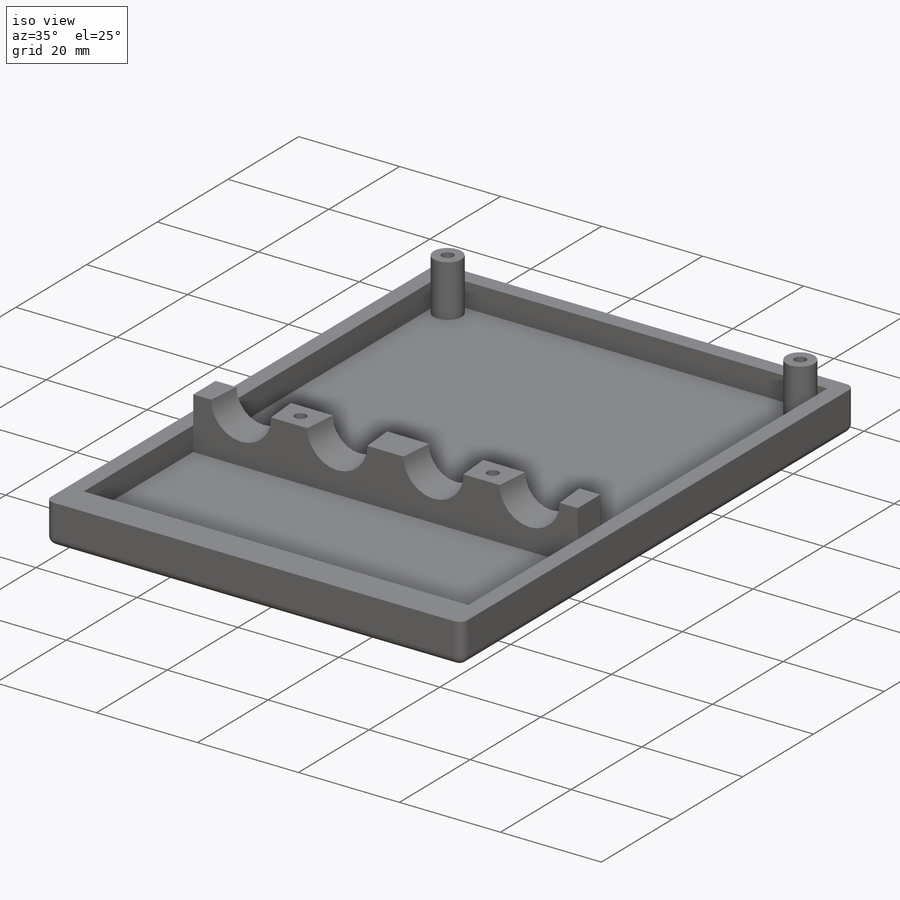
[diagram: iso view]
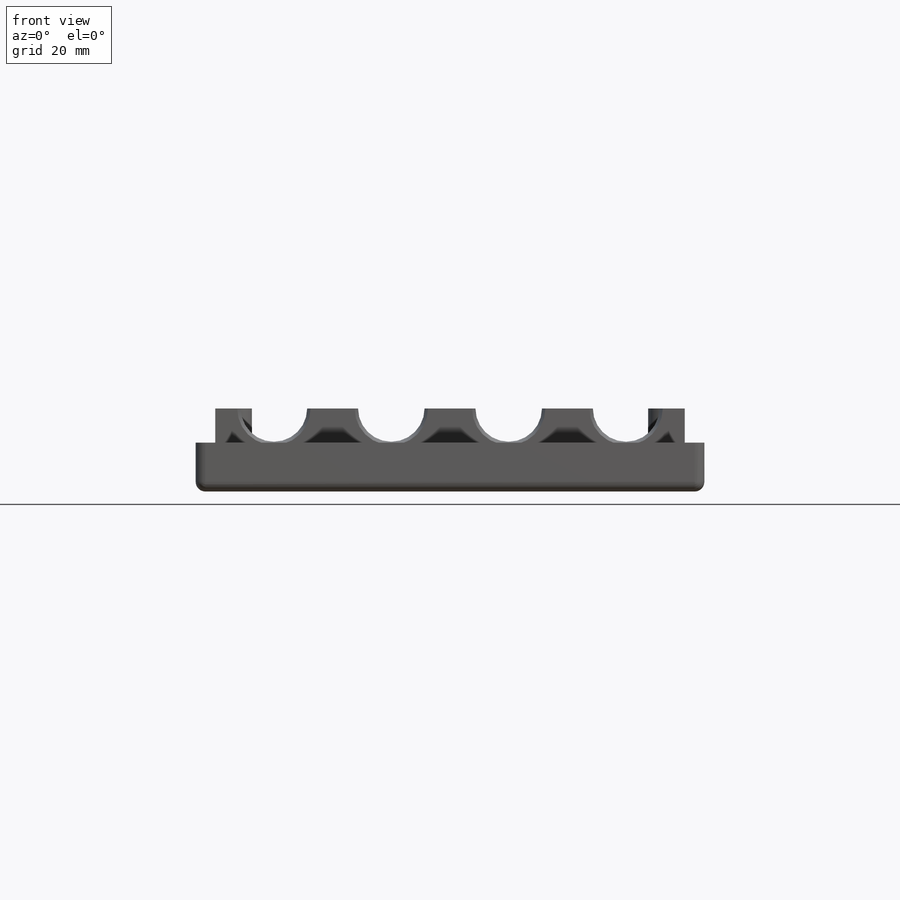
[diagram: front view]
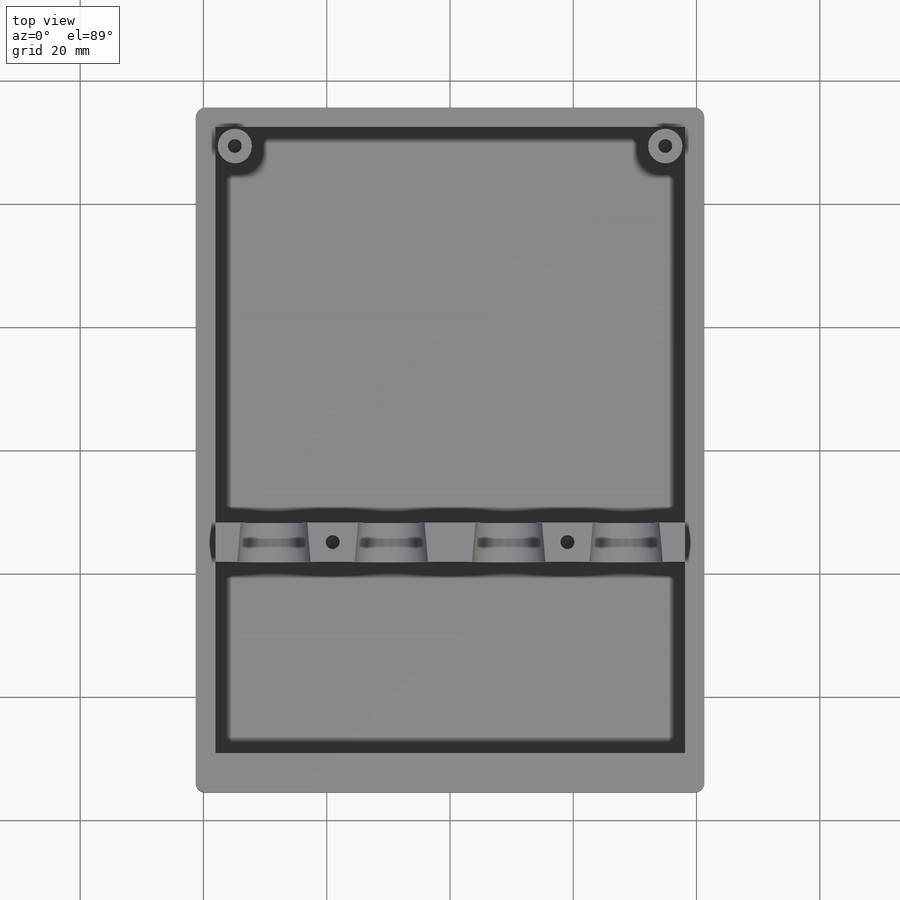
[diagram: top view]
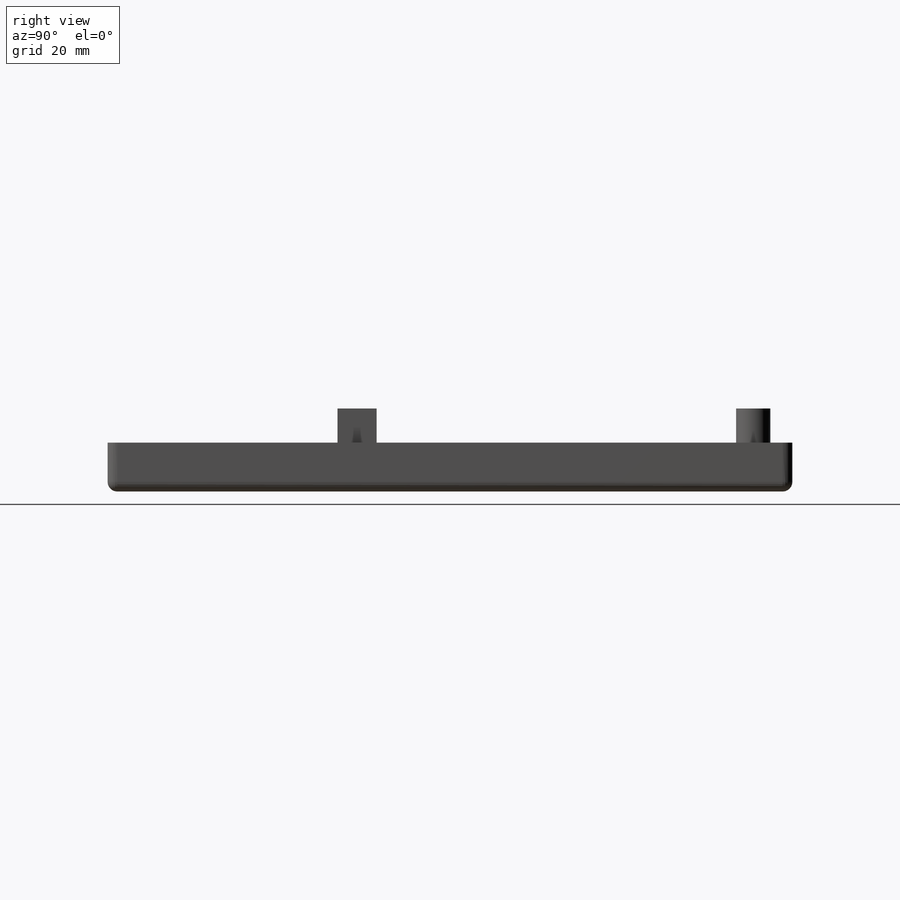
[diagram: right view]
SOLIDWORKS PART (.sldprt)
format: sldprt  version: not decoded by parser v0  size: 667,136 bytes
history: native  units: mm
features: sketch x12, extrude x4, hole x4, cut_extrude x3, material x1, fillet x1, thread x1 (+11 scaffold rows collapsed)
feature tree (37):
  scaffold x11  (default folders/planes/origin — collapsed)
  material  "Material <not specified>"
  sketch  "Sketch1"  dims[D1=111.125mm D2=82.55mm]
  extrude  "Boss-Extrude1"  Depth=7.9375mm
  sketch  "Sketch3"  dims[D1=1.5875mm D2=101.6mm D3=76.2mm]
  cut_extrude  "Cut-Extrude1"  Depth=3.175mm
  sketch  "Sketch4"  dims[D5=~5.55625mm D1=~30.95625mm D2=6.35mm D3=3.175mm D4=3.175mm]
  extrude  "Boss-Extrude2"  Depth=4.7625mm
  sketch  "Sketch5"  dims[D1=76.1746mm]
  extrude  "Boss-Extrude3"  Depth=5.5499mm
  sketch  "Sketch6"  dims[D1=9.525mm D2=19.05mm D3=9.525mm D4=19.05mm]
  sketch  "Sketch7"  dims[D1=~11.90625mm D2=~11.90625mm D3=~11.90625mm D4=~11.90625mm]
  cut_extrude  "Cut-Extrude2"  [1 undecoded]
  fillet  "Fillet1"  Radius=1.5875mm
  sketch  "Sketch8"
  sketch  "Sketch9"
  cut_extrude  "Cut-Extrude6"  Depth=0.79375mm
  sketch  "Sketch10"
  extrude  "Boss-Extrude10"  Depth=0.79375mm
  sketch  "HoleLocations"
  hole  "#4-40 Tapped Hole4"  Diameter=2.2606mm Depth=5.588mm
  sketch  "Sketch27"
  sketch  "Sketch26"  dims[hole-wizard template sketch: 47 standard entries collapsed; hole parameters kept: c15.Tap Drill Depth=5.588mm c15.D3=~14.816244mm c15.Drill Angle=118.0deg]
  thread  "Hole Thread10"  Diameter=5.588mm  [1 undecoded]
  hole  "Hole Thread11"  Diameter=5.588mm
  hole  "Hole Thread12"  Diameter=5.588mm
  hole  "Hole Thread13"  Diameter=5.588mm
decode coverage: 19 of 25 modeling features carry decoded parameters
note: ~ marks probable driven/reference dimensions
note: 2 parameter values undecoded
note: suppression state not decoded; provenance and decode notes live in map.json
